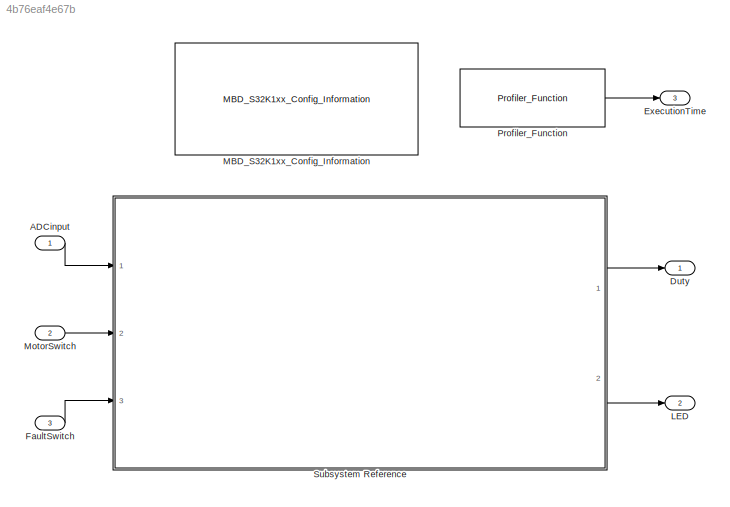
MODEL slx_4b76eaf4e67b
KIND model
CONFIG AbsTol = auto
CONFIG EnableMultiTasking = off
CONFIG FixedStep = Tctr
CONFIG InitFcn = mbd_s32k_consistency_checks(bdroot(gcs));
CONFIG MaxStep = auto
CONFIG MinStep = auto
CONFIG RelTol = 1e-3
CONFIG SampleTimeConstraint = Unconstrained
CONFIG SolverName = FixedStepDiscrete
CONFIG StartTime = 0.0
CONFIG StopTime = 10.0
BLOCK [Inport] ADCinput
  OutDataTypeStr = uint16
  PortDimensions = 5
BLOCK [Outport] Duty
  OutDataTypeStr = single
  PortDimensions = 3
BLOCK [Outport] ExecutionTime
  OutDataTypeStr = uint32
  Port = 3
  PortDimensions = 1
BLOCK [Inport] FaultSwitch
  OutDataTypeStr = boolean
  Port = 3
  PortDimensions = 1
BLOCK [Outport] LED
  OutDataTypeStr = boolean
  Port = 2
  PortDimensions = 3
BLOCK [Reference] MBD_S32K1xx_Config_Information  REF=mbd_s32k1xx_ec_toolbox/MBD_S32K1xx_Config_Information
  Ports = []
  SourceBlock = mbd_s32k1xx_ec_toolbox/MBD_S32K1xx_Config_Information
  SourceType = MBDTBX_EC_S32K
BLOCK [Inport] MotorSwitch
  OutDataTypeStr = boolean
  Port = 2
  PortDimensions = 1
BLOCK [Reference] Profiler_Function  REF=mbd_s32k1xx_ec_toolbox/Utility Blocks/Profiler_Function
  Ports = [0, 1]
  SourceBlock = mbd_s32k1xx_ec_toolbox/Utility Blocks/Profiler_Function
  SourceType = profiler_s32k_func
BLOCK [SubSystem] Subsystem Reference
  Ports = [3, 2]
  ReferencedSubsystem = FOC_Sub_StateMch
  RequestExecContextInheritance = off
LINE ADCinput:1 -> Subsystem Reference:1
LINE FaultSwitch:1 -> Subsystem Reference:3
LINE MotorSwitch:1 -> Subsystem Reference:2
LINE Profiler_Function:1 -> ExecutionTime:1
LINE Subsystem Reference:1 -> Duty:1
LINE Subsystem Reference:2 -> LED:1
